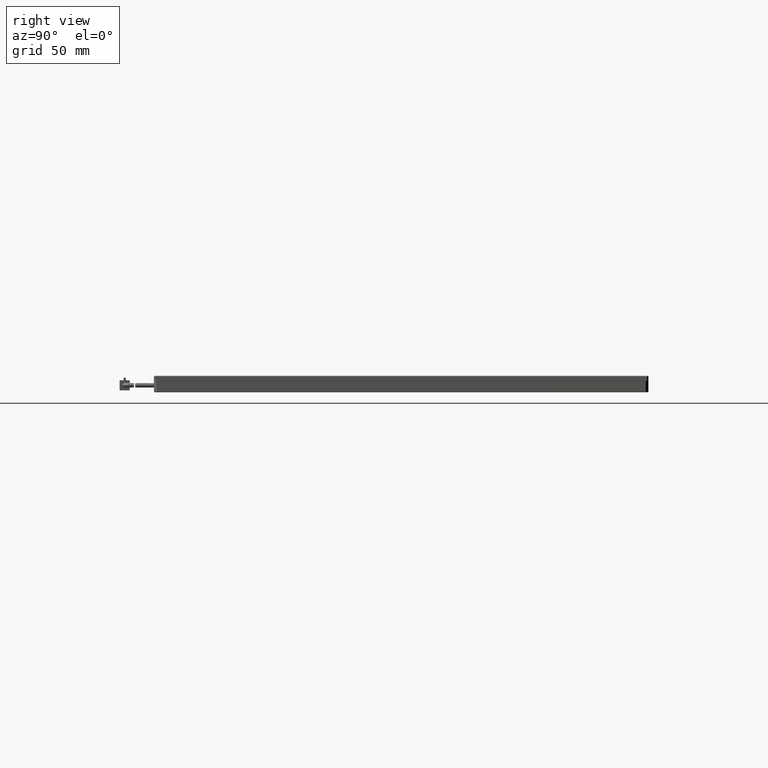
[diagram: clean part render]
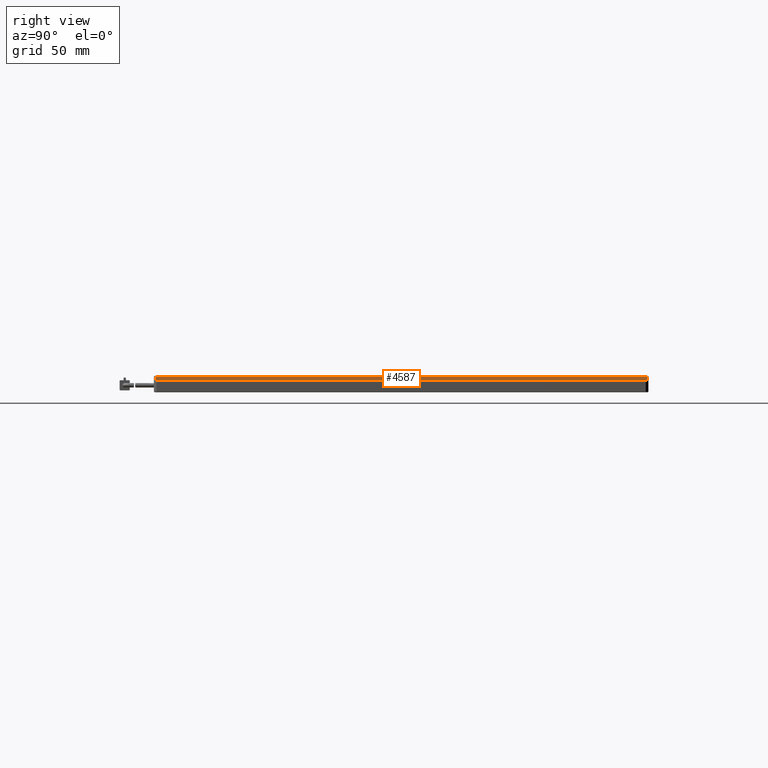
[diagram: same view with one face highlighted and labeled with its STEP entity id]
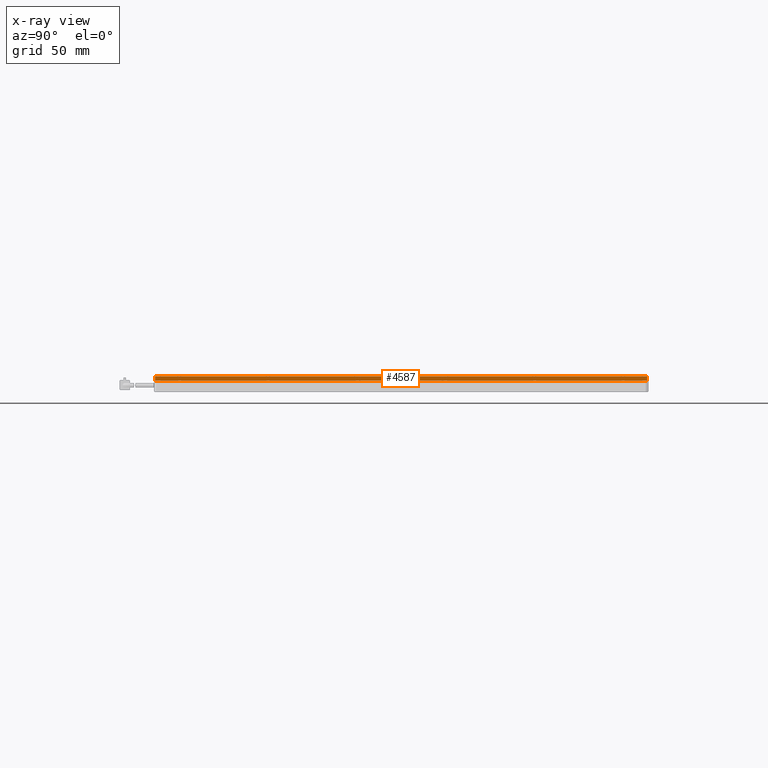
[diagram: x-ray of the same camera — body ghosted, the highlighted face saturated]
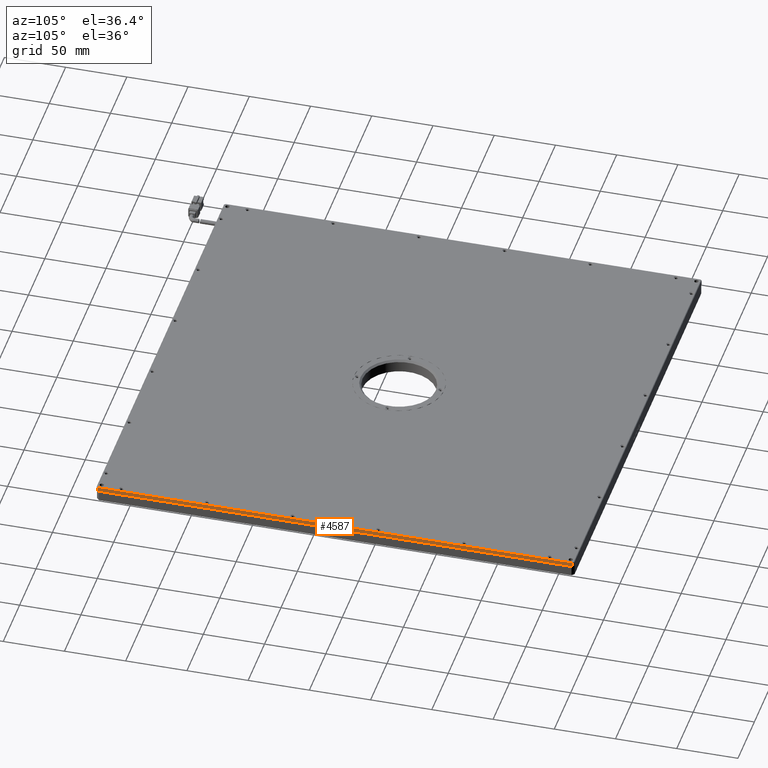
[diagram: same view with one face highlighted and labeled with its STEP entity id]
A machine part, right view. The second image highlights one B-rep face of the part: STEP entity #4587.
The next image is the same camera in x-ray: the body ghosted, the highlighted face saturated — about 0% of this face is hidden behind the body in this view.
A second angle (auxiliary view) of the same face is appended — the face is thin or edge-on in the first view.
In plain terms, the highlighted planar face has unit normal (-1, 0, 0).
Its self-contained STEP definition (entity closure, byte-faithful):
#1456 = EDGE_CURVE ( 'NONE', #10879, #2635, #4450, .T. ) ;
#1579 = EDGE_CURVE ( 'NONE', #11004, #10879, #1826, .T. ) ;
#1826 = LINE ( 'NONE', #14759, #2608 ) ;
#1882 = DIRECTION ( 'NONE',  ( 0.0000000000000000000, 0.0000000000000000000, 1.000000000000000000 ) ) ;
#2608 = VECTOR ( 'NONE', #2890, 1000.000000000000000 ) ;
#2635 = VERTEX_POINT ( 'NONE', #11596 ) ;
#2890 = DIRECTION ( 'NONE',  ( 0.0000000000000000000, 0.0000000000000000000, 1.000000000000000000 ) ) ;
#3007 = CARTESIAN_POINT ( 'NONE',  ( 160.8515982014610000, -173.5770270270280100, 4.249999999999996400 ) ) ;
#3429 = DIRECTION ( 'NONE',  ( -1.000000000000000000, 0.0000000000000000000, 0.0000000000000000000 ) ) ;
#3642 = PLANE ( 'NONE',  #8053 ) ;
#4353 = EDGE_CURVE ( 'NONE', #2635, #13028, #9236, .T. ) ;
#4450 = LINE ( 'NONE', #7799, #19650 ) ;
#4587 = ADVANCED_FACE ( 'NONE', ( #4930 ), #3642, .F. ) ;
#4930 = FACE_OUTER_BOUND ( 'NONE', #7801, .T. ) ;
#7085 = VECTOR ( 'NONE', #11394, 1000.000000000000000 ) ;
#7799 = CARTESIAN_POINT ( 'NONE',  ( 160.8515982014610000, -174.5770270270280700, 7.749999999999998200 ) ) ;
#7801 = EDGE_LOOP ( 'NONE', ( #10135, #19702, #16250, #21702 ) ) ;
#8053 = AXIS2_PLACEMENT_3D ( 'NONE', #20636, #3429, #1882 ) ;
#9236 = LINE ( 'NONE', #21597, #7085 ) ;
#10135 = ORIENTED_EDGE ( 'NONE', *, *, #1456, .F. ) ;
#10879 = VERTEX_POINT ( 'NONE', #19550 ) ;
#11004 = VERTEX_POINT ( 'NONE', #3007 ) ;
#11118 = EDGE_CURVE ( 'NONE', #11004, #13028, #16070, .T. ) ;
#11394 = DIRECTION ( 'NONE',  ( -0.0000000000000000000, -0.0000000000000000000, -1.000000000000000000 ) ) ;
#11596 = CARTESIAN_POINT ( 'NONE',  ( 160.8515982014610000, 214.4229729729719300, 7.750000000000007100 ) ) ;
#13028 = VERTEX_POINT ( 'NONE', #15601 ) ;
#14759 = CARTESIAN_POINT ( 'NONE',  ( 160.8515982014610000, -173.5770270270280100, 8.249999999999998200 ) ) ;
#15601 = CARTESIAN_POINT ( 'NONE',  ( 160.8515982014610000, 214.4229729729719300, 4.249999999999996400 ) ) ;
#16070 = LINE ( 'NONE', #20188, #17129 ) ;
#16174 = DIRECTION ( 'NONE',  ( 0.0000000000000000000, 1.000000000000000000, -0.0000000000000000000 ) ) ;
#16250 = ORIENTED_EDGE ( 'NONE', *, *, #11118, .T. ) ;
#16857 = DIRECTION ( 'NONE',  ( 0.0000000000000000000, 1.000000000000000000, 0.0000000000000000000 ) ) ;
#17129 = VECTOR ( 'NONE', #16857, 1000.000000000000000 ) ;
#19550 = CARTESIAN_POINT ( 'NONE',  ( 160.8515982014610000, -173.5770270270280700, 7.749999999999994700 ) ) ;
#19650 = VECTOR ( 'NONE', #16174, 1000.000000000000000 ) ;
#19702 = ORIENTED_EDGE ( 'NONE', *, *, #1579, .F. ) ;
#20188 = CARTESIAN_POINT ( 'NONE',  ( 160.8515982014610000, 215.4229729729718800, 4.249999999999998200 ) ) ;
#20636 = CARTESIAN_POINT ( 'NONE',  ( 160.8515982014610000, -174.5770270270280700, 8.249999999999998200 ) ) ;
#21597 = CARTESIAN_POINT ( 'NONE',  ( 160.8515982014610000, 214.4229729729719300, 8.249999999999998200 ) ) ;
#21702 = ORIENTED_EDGE ( 'NONE', *, *, #4353, .F. ) ;